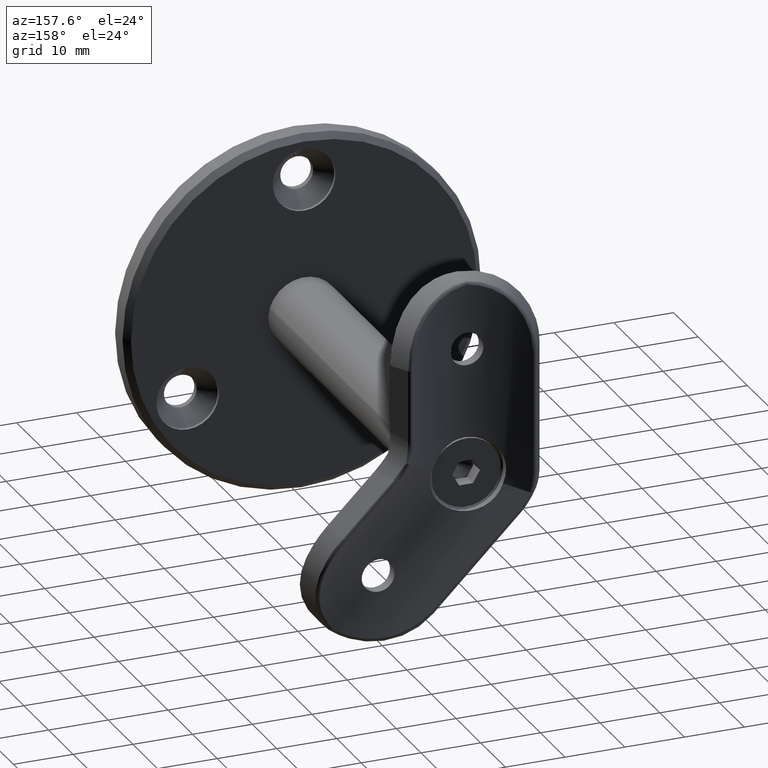
[diagram: clean part render]
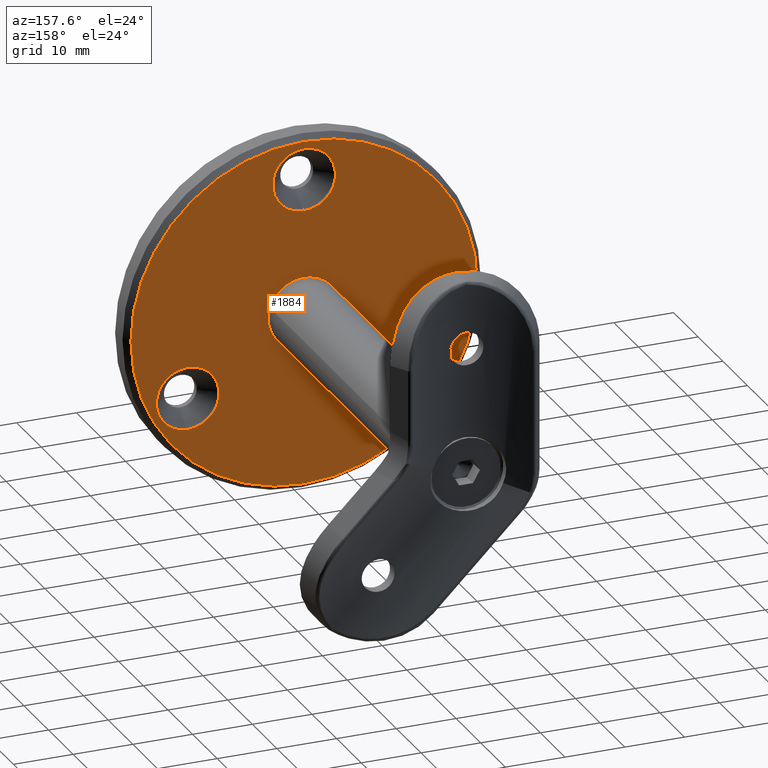
[diagram: same view with one face highlighted and labeled with its STEP entity id]
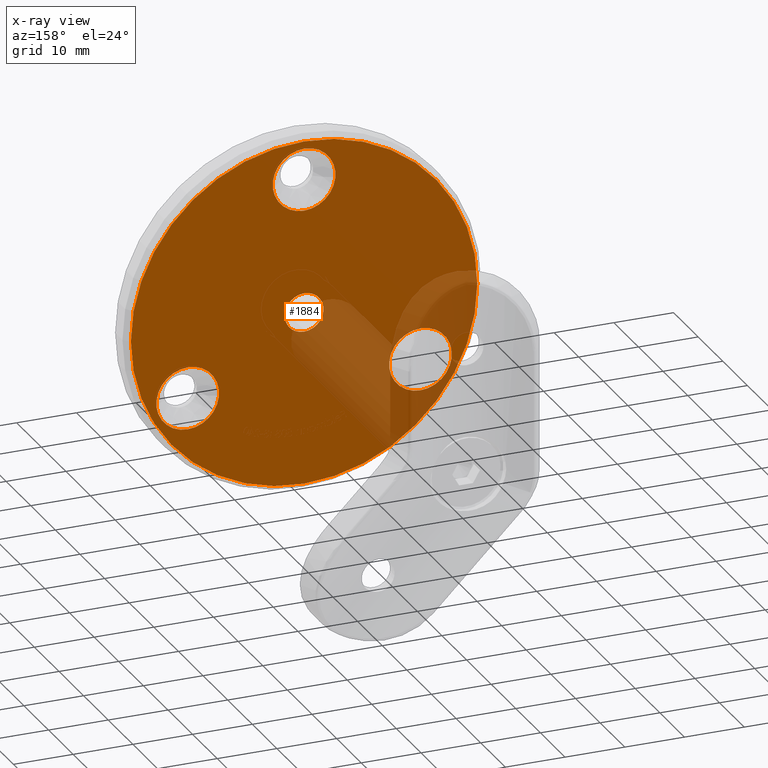
[diagram: x-ray of the same camera — body ghosted, the highlighted face saturated]
A machine part, auxiliary view. The second image highlights one B-rep face of the part: STEP entity #1884.
The next image is the same camera in x-ray: the body ghosted, the highlighted face saturated — about 17% of this face is hidden behind the body in this view.
In plain terms, the highlighted planar face has unit normal (0, 1, 0).
Its self-contained STEP definition (entity closure, byte-faithful):
#209 = CIRCLE ( 'NONE', #2202, 5.249999999999997300 ) ;
#538 = DIRECTION ( 'NONE',  ( 0.0000000000000000000, 0.0000000000000000000, 1.000000000000000000 ) ) ;
#567 = VERTEX_POINT ( 'NONE', #2107 ) ;
#997 = AXIS2_PLACEMENT_3D ( 'NONE', #3195, #6089, #6026 ) ;
#1245 = AXIS2_PLACEMENT_3D ( 'NONE', #3468, #6502, #12522 ) ;
#1525 = ORIENTED_EDGE ( 'NONE', *, *, #10431, .T. ) ;
#1770 = EDGE_CURVE ( 'NONE', #567, #4816, #3554, .T. ) ;
#1884 = ADVANCED_FACE ( 'NONE', ( #17146, #8715, #13613, #9666, #18084 ), #14489, .T. ) ;
#2107 = CARTESIAN_POINT ( 'NONE',  ( 6.429395695523601200E-016, 4.000000000000001800, 17.25000000000000000 ) ) ;
#2202 = AXIS2_PLACEMENT_3D ( 'NONE', #6495, #12511, #3593 ) ;
#2449 = VERTEX_POINT ( 'NONE', #10484 ) ;
#2524 = CARTESIAN_POINT ( 'NONE',  ( 19.48557158514997300, 4.000000000000001800, -16.49999999999981500 ) ) ;
#2532 = AXIS2_PLACEMENT_3D ( 'NONE', #18949, #14421, #8541 ) ;
#2743 = CARTESIAN_POINT ( 'NONE',  ( -19.48557158514982000, 4.000000000000001800, -11.25000000000009200 ) ) ;
#3195 = CARTESIAN_POINT ( 'NONE',  ( 19.48557158514997300, 4.000000000000001800, -11.24999999999981900 ) ) ;
#3468 = CARTESIAN_POINT ( 'NONE',  ( 0.0000000000000000000, 3.999999999999999100, 0.0000000000000000000 ) ) ;
#3554 = CIRCLE ( 'NONE', #8958, 5.249999999999997300 ) ;
#3593 = DIRECTION ( 'NONE',  ( 0.0000000000000000000, 0.0000000000000000000, 1.000000000000000000 ) ) ;
#3999 = DIRECTION ( 'NONE',  ( -0.0000000000000000000, 1.000000000000000000, -0.0000000000000000000 ) ) ;
#4006 = EDGE_CURVE ( 'NONE', #4816, #567, #209, .T. ) ;
#4355 = DIRECTION ( 'NONE',  ( 0.0000000000000000000, 1.000000000000000000, 0.0000000000000000000 ) ) ;
#4374 = CIRCLE ( 'NONE', #12559, 29.00000000000000000 ) ;
#4726 = AXIS2_PLACEMENT_3D ( 'NONE', #12971, #3999, #8153 ) ;
#4790 = EDGE_CURVE ( 'NONE', #7434, #15219, #11692, .T. ) ;
#4816 = VERTEX_POINT ( 'NONE', #5906 ) ;
#5056 = ORIENTED_EDGE ( 'NONE', *, *, #16996, .F. ) ;
#5582 = CARTESIAN_POINT ( 'NONE',  ( 0.0000000000000000000, 3.999999999999999100, -3.249999999999999600 ) ) ;
#5859 = DIRECTION ( 'NONE',  ( 0.0000000000000000000, 1.000000000000000000, 0.0000000000000000000 ) ) ;
#5906 = CARTESIAN_POINT ( 'NONE',  ( 0.0000000000000000000, 4.000000000000001800, 27.74999999999999600 ) ) ;
#5997 = CARTESIAN_POINT ( 'NONE',  ( 0.0000000000000000000, 4.000000000000000000, 0.0000000000000000000 ) ) ;
#6026 = DIRECTION ( 'NONE',  ( 0.0000000000000000000, 0.0000000000000000000, 1.000000000000000000 ) ) ;
#6089 = DIRECTION ( 'NONE',  ( -0.0000000000000000000, 1.000000000000000000, -0.0000000000000000000 ) ) ;
#6094 = VERTEX_POINT ( 'NONE', #15154 ) ;
#6239 = ORIENTED_EDGE ( 'NONE', *, *, #12294, .F. ) ;
#6296 = EDGE_CURVE ( 'NONE', #15219, #7434, #13405, .T. ) ;
#6495 = CARTESIAN_POINT ( 'NONE',  ( 0.0000000000000000000, 4.000000000000001800, 22.50000000000000000 ) ) ;
#6502 = DIRECTION ( 'NONE',  ( -0.0000000000000000000, -1.000000000000000000, -0.0000000000000000000 ) ) ;
#6530 = DIRECTION ( 'NONE',  ( -0.0000000000000000000, 1.000000000000000000, -0.0000000000000000000 ) ) ;
#6832 = DIRECTION ( 'NONE',  ( 0.0000000000000000000, 0.0000000000000000000, 1.000000000000000000 ) ) ;
#7014 = AXIS2_PLACEMENT_3D ( 'NONE', #17349, #14339, #6832 ) ;
#7434 = VERTEX_POINT ( 'NONE', #7570 ) ;
#7570 = CARTESIAN_POINT ( 'NONE',  ( -19.48557158514982000, 4.000000000000001800, -6.000000000000094100 ) ) ;
#7680 = ORIENTED_EDGE ( 'NONE', *, *, #1770, .F. ) ;
#8153 = DIRECTION ( 'NONE',  ( 0.0000000000000000000, 0.0000000000000000000, 1.000000000000000000 ) ) ;
#8461 = CIRCLE ( 'NONE', #19290, 3.249999999999999600 ) ;
#8524 = ORIENTED_EDGE ( 'NONE', *, *, #6296, .F. ) ;
#8541 = DIRECTION ( 'NONE',  ( 0.0000000000000000000, -0.0000000000000000000, 1.000000000000000000 ) ) ;
#8642 = EDGE_LOOP ( 'NONE', ( #6239, #5056 ) ) ;
#8715 = FACE_OUTER_BOUND ( 'NONE', #11548, .T. ) ;
#8958 = AXIS2_PLACEMENT_3D ( 'NONE', #9610, #6530, #538 ) ;
#9543 = ORIENTED_EDGE ( 'NONE', *, *, #11650, .T. ) ;
#9602 = ORIENTED_EDGE ( 'NONE', *, *, #14941, .T. ) ;
#9610 = CARTESIAN_POINT ( 'NONE',  ( 0.0000000000000000000, 4.000000000000001800, 22.50000000000000000 ) ) ;
#9666 = FACE_BOUND ( 'NONE', #12535, .T. ) ;
#9708 = DIRECTION ( 'NONE',  ( -0.0000000000000000000, -1.000000000000000000, -0.0000000000000000000 ) ) ;
#10393 = ORIENTED_EDGE ( 'NONE', *, *, #4006, .F. ) ;
#10398 = DIRECTION ( 'NONE',  ( 0.0000000000000000000, 0.0000000000000000000, 1.000000000000000000 ) ) ;
#10400 = DIRECTION ( 'NONE',  ( 0.0000000000000000000, 0.0000000000000000000, 1.000000000000000000 ) ) ;
#10431 = EDGE_CURVE ( 'NONE', #13930, #15278, #8461, .T. ) ;
#10480 = CARTESIAN_POINT ( 'NONE',  ( 3.980102097228897200E-016, 3.999999999999999100, 3.249999999999999600 ) ) ;
#10484 = CARTESIAN_POINT ( 'NONE',  ( 0.0000000000000000000, 4.000000000000000000, -29.00000000000000000 ) ) ;
#10700 = CIRCLE ( 'NONE', #997, 5.249999999999997300 ) ;
#11372 = CIRCLE ( 'NONE', #1245, 3.249999999999999600 ) ;
#11548 = EDGE_LOOP ( 'NONE', ( #9543, #9602 ) ) ;
#11650 = EDGE_CURVE ( 'NONE', #2449, #16773, #13341, .T. ) ;
#11692 = CIRCLE ( 'NONE', #15792, 5.249999999999997300 ) ;
#11963 = CARTESIAN_POINT ( 'NONE',  ( 0.0000000000000000000, 4.000000000000000000, 0.0000000000000000000 ) ) ;
#12294 = EDGE_CURVE ( 'NONE', #6094, #14894, #18016, .T. ) ;
#12511 = DIRECTION ( 'NONE',  ( -0.0000000000000000000, 1.000000000000000000, -0.0000000000000000000 ) ) ;
#12522 = DIRECTION ( 'NONE',  ( 0.0000000000000000000, 0.0000000000000000000, -1.000000000000000000 ) ) ;
#12535 = EDGE_LOOP ( 'NONE', ( #13782, #8524 ) ) ;
#12559 = AXIS2_PLACEMENT_3D ( 'NONE', #5997, #4355, #10400 ) ;
#12971 = CARTESIAN_POINT ( 'NONE',  ( -19.48557158514982000, 4.000000000000001800, -11.25000000000009200 ) ) ;
#13233 = DIRECTION ( 'NONE',  ( 0.0000000000000000000, 0.0000000000000000000, 1.000000000000000000 ) ) ;
#13304 = CARTESIAN_POINT ( 'NONE',  ( -19.48557158514982000, 4.000000000000001800, -16.50000000000009200 ) ) ;
#13341 = CIRCLE ( 'NONE', #13391, 29.00000000000000000 ) ;
#13391 = AXIS2_PLACEMENT_3D ( 'NONE', #11963, #5859, #10398 ) ;
#13405 = CIRCLE ( 'NONE', #4726, 5.249999999999997300 ) ;
#13613 = FACE_BOUND ( 'NONE', #8642, .T. ) ;
#13782 = ORIENTED_EDGE ( 'NONE', *, *, #4790, .F. ) ;
#13930 = VERTEX_POINT ( 'NONE', #10480 ) ;
#14072 = CARTESIAN_POINT ( 'NONE',  ( 0.0000000000000000000, 3.999999999999999100, 0.0000000000000000000 ) ) ;
#14288 = CARTESIAN_POINT ( 'NONE',  ( 3.612708057484691600E-015, 4.000000000000000000, 29.00000000000000000 ) ) ;
#14339 = DIRECTION ( 'NONE',  ( -0.0000000000000000000, 1.000000000000000000, -0.0000000000000000000 ) ) ;
#14421 = DIRECTION ( 'NONE',  ( 0.0000000000000000000, 1.000000000000000000, 0.0000000000000000000 ) ) ;
#14489 = PLANE ( 'NONE',  #2532 ) ;
#14894 = VERTEX_POINT ( 'NONE', #2524 ) ;
#14941 = EDGE_CURVE ( 'NONE', #16773, #2449, #4374, .T. ) ;
#15154 = CARTESIAN_POINT ( 'NONE',  ( 19.48557158514997300, 4.000000000000001800, -5.999999999999821500 ) ) ;
#15219 = VERTEX_POINT ( 'NONE', #13304 ) ;
#15278 = VERTEX_POINT ( 'NONE', #5582 ) ;
#15792 = AXIS2_PLACEMENT_3D ( 'NONE', #2743, #17823, #13233 ) ;
#16133 = ORIENTED_EDGE ( 'NONE', *, *, #17934, .T. ) ;
#16773 = VERTEX_POINT ( 'NONE', #14288 ) ;
#16911 = EDGE_LOOP ( 'NONE', ( #10393, #7680 ) ) ;
#16996 = EDGE_CURVE ( 'NONE', #14894, #6094, #10700, .T. ) ;
#17146 = FACE_BOUND ( 'NONE', #18883, .T. ) ;
#17349 = CARTESIAN_POINT ( 'NONE',  ( 19.48557158514997300, 4.000000000000001800, -11.24999999999981900 ) ) ;
#17823 = DIRECTION ( 'NONE',  ( -0.0000000000000000000, 1.000000000000000000, -0.0000000000000000000 ) ) ;
#17934 = EDGE_CURVE ( 'NONE', #15278, #13930, #11372, .T. ) ;
#18016 = CIRCLE ( 'NONE', #7014, 5.249999999999997300 ) ;
#18084 = FACE_BOUND ( 'NONE', #16911, .T. ) ;
#18592 = DIRECTION ( 'NONE',  ( 0.0000000000000000000, 0.0000000000000000000, -1.000000000000000000 ) ) ;
#18883 = EDGE_LOOP ( 'NONE', ( #16133, #1525 ) ) ;
#18949 = CARTESIAN_POINT ( 'NONE',  ( 0.0000000000000000000, 4.000000000000000000, 0.0000000000000000000 ) ) ;
#19290 = AXIS2_PLACEMENT_3D ( 'NONE', #14072, #9708, #18592 ) ;